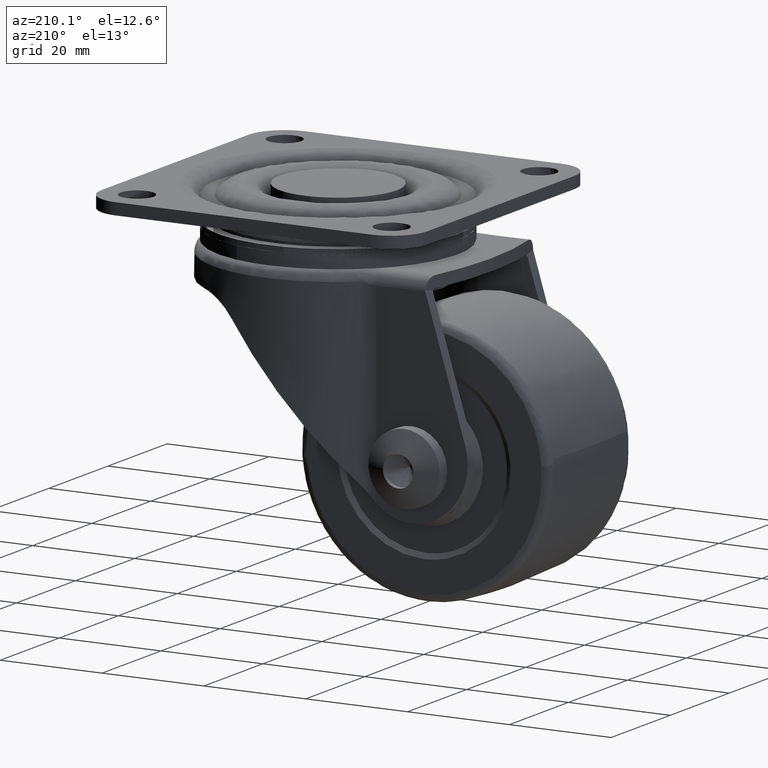
[diagram: clean part render]
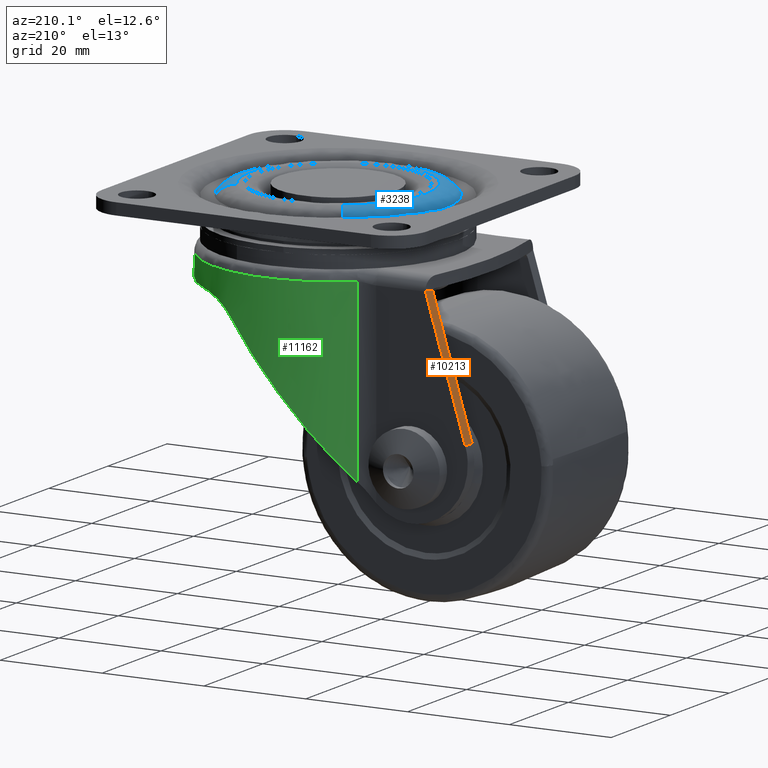
[diagram: same view with three faces highlighted in distinct colors, each labeled with its STEP entity id]
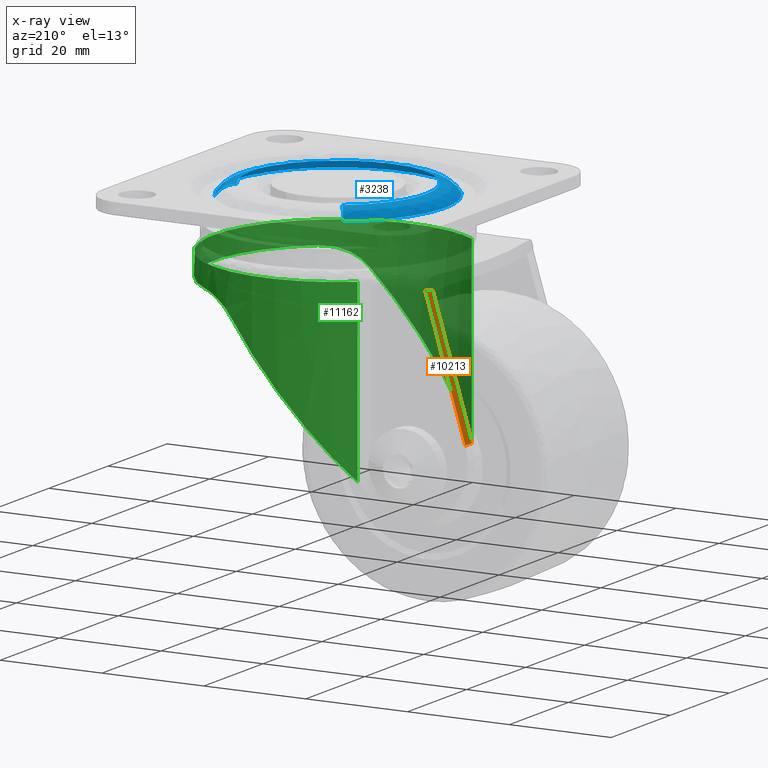
[diagram: x-ray of the same camera — body ghosted, the three highlighted faces saturated]
A machine part, auxiliary view with three faces highlighted in distinct colors.
The next image is the same camera in x-ray (body ghosted, the three faces saturated) — at least one of them is partly hidden behind the body in this view.
Their STEP definitions:

[orange] entity #10213 — the highlighted face is a freeform B-spline surface patch.
#9016=CARTESIAN_POINT('',(-27.753012087365299,18.300003000000000,-12.299999999999860));
#9017=VERTEX_POINT('',#9016);
#9023=CARTESIAN_POINT('',(-27.693171336923051,18.292096441677700,-12.101328718866780));
#9024=VERTEX_POINT('',#9023);
#9025=CARTESIAN_POINT('',(-27.693171336923079,18.292096441677678,-12.101328718866769));
#9026=CARTESIAN_POINT('',(-27.723044311244770,18.300002996684892,-12.200506988455409));
#9027=CARTESIAN_POINT('',(-27.753012087365299,18.300003000000000,-12.299999999999860));
#9035=(BOUNDED_CURVE()B_SPLINE_CURVE(2,(#9025,#9026,#9027),.UNSPECIFIED.,.F.,.U.)CURVE()GEOMETRIC_REPRESENTATION_ITEM()QUASI_UNIFORM_CURVE()RATIONAL_B_SPLINE_CURVE((1.0,0.999209032014707,1.0))REPRESENTATION_ITEM(''));
#9036=EDGE_CURVE('',#9024,#9017,#9035,.T.);
#9087=CARTESIAN_POINT('',(-27.993975955322249,16.0,-13.100000000000000));
#9088=VERTEX_POINT('',#9087);
#9089=CARTESIAN_POINT('',(-27.818652147889949,15.813135094725050,-12.517924989604939));
#9090=VERTEX_POINT('',#9089);
#9091=CARTESIAN_POINT('',(-27.993975955322298,16.0,-13.099999999999991));
#9092=CARTESIAN_POINT('',(-27.897279460978105,16.000000000000007,-12.778967655477768));
#9093=CARTESIAN_POINT('',(-27.818652147889971,15.813135094725050,-12.517924989604881));
#9101=(BOUNDED_CURVE()B_SPLINE_CURVE(2,(#9091,#9092,#9093),.UNSPECIFIED.,.F.,.U.)CURVE()GEOMETRIC_REPRESENTATION_ITEM()QUASI_UNIFORM_CURVE()RATIONAL_B_SPLINE_CURVE((1.0,0.952138407671096,1.0))REPRESENTATION_ITEM(''));
#9102=EDGE_CURVE('',#9088,#9090,#9101,.T.);
#9568=CARTESIAN_POINT('',(-27.755911742406500,17.052615768201381,-12.309626854235860));
#9569=VERTEX_POINT('',#9568);
#9570=CARTESIAN_POINT('',(-27.755911742406500,17.052615768201381,-12.309626854235860));
#9571=CARTESIAN_POINT('',(-27.734998273912019,17.465775992693491,-12.240194142446160));
#9572=CARTESIAN_POINT('',(-27.714084805417549,17.878936217185590,-12.170761430656430));
#9573=CARTESIAN_POINT('',(-27.693171336923051,18.292096441677700,-12.101328718866780));
#9574=B_SPLINE_CURVE_WITH_KNOTS('',3,(#9570,#9571,#9572,#9573),.UNSPECIFIED.,.F.,.U.,(4,4),(0.819219477568994,0.998854123476895),.UNSPECIFIED.);
#9575=EDGE_CURVE('',#9569,#9024,#9574,.T.);
#9577=CARTESIAN_POINT('',(-27.818652147889949,15.813135094725039,-12.517924989604950));
#9578=CARTESIAN_POINT('',(-27.815499219899369,15.875423396483360,-12.507457269220749));
#9579=CARTESIAN_POINT('',(-27.812346291908788,15.937711698241680,-12.496989548836559));
#9580=CARTESIAN_POINT('',(-27.809193363918201,16.0,-12.486521828452361));
#9581=CARTESIAN_POINT('',(-27.791432823414290,16.350871922733798,-12.427556837046870));
#9582=CARTESIAN_POINT('',(-27.773672282910390,16.701743845467590,-12.368591845641371));
#9583=CARTESIAN_POINT('',(-27.755911742406500,17.052615768201381,-12.309626854235860));
#9584=B_SPLINE_CURVE_WITH_KNOTS('',3,(#9577,#9578,#9579,#9580,#9581,#9582,#9583),.UNSPECIFIED.,.F.,.U.,(4,3,4),(0.639584831661094,0.666666666666667,0.819219477568994),.UNSPECIFIED.);
#9585=EDGE_CURVE('',#9090,#9569,#9584,.T.);
#10183=CARTESIAN_POINT('',(-35.962674591449939,15.688916094366469,-39.556078095667942));
#10184=CARTESIAN_POINT('',(-27.299760322966630,15.688916094366469,-10.795204220477430));
#10185=CARTESIAN_POINT('',(-35.962674591449939,18.424222111530241,-39.556078095667942));
#10186=CARTESIAN_POINT('',(-27.299760322966630,18.424222111530241,-10.795204220477430));
#10187=B_SPLINE_SURFACE_WITH_KNOTS('',1,1,((#10183,#10185),(#10184,#10186)),.UNSPECIFIED.,.F.,.F.,.U.,(2,2),(2,2),(0.0,30.037209419113950),(0.0,2.735306017163765),.UNSPECIFIED.);
#10188=ORIENTED_EDGE('',*,*,#9585,.T.);
#10189=ORIENTED_EDGE('',*,*,#9575,.T.);
#10190=ORIENTED_EDGE('',*,*,#9036,.T.);
#10191=CARTESIAN_POINT('',(-35.569263999999997,18.300003000000000,-38.249955000000213));
#10192=VERTEX_POINT('',#10191);
#10193=CARTESIAN_POINT('',(-27.753012087365299,18.300003000000000,-12.299999999999860));
#10194=CARTESIAN_POINT('',(-35.569263999999997,18.300003000000000,-38.249955000000213));
#10195=QUASI_UNIFORM_CURVE('',1,(#10193,#10194),.UNSPECIFIED.,.F.,.U.);
#10196=EDGE_CURVE('',#9017,#10192,#10195,.T.);
#10197=ORIENTED_EDGE('',*,*,#10196,.T.);
#10198=CARTESIAN_POINT('',(-35.569263999999997,16.0,-38.249955000000213));
#10199=VERTEX_POINT('',#10198);
#10200=CARTESIAN_POINT('',(-35.569263999999997,16.0,-38.249955000000213));
#10201=CARTESIAN_POINT('',(-35.569263999999997,18.300003000000000,-38.249955000000213));
#10202=QUASI_UNIFORM_CURVE('',1,(#10200,#10201),.UNSPECIFIED.,.F.,.U.);
#10203=EDGE_CURVE('',#10199,#10192,#10202,.T.);
#10204=ORIENTED_EDGE('',*,*,#10203,.F.);
#10205=CARTESIAN_POINT('',(-27.993975955322249,16.0,-13.100000000000000));
#10206=CARTESIAN_POINT('',(-35.569263999999997,16.0,-38.249955000000213));
#10207=QUASI_UNIFORM_CURVE('',1,(#10205,#10206),.UNSPECIFIED.,.F.,.U.);
#10208=EDGE_CURVE('',#9088,#10199,#10207,.T.);
#10209=ORIENTED_EDGE('',*,*,#10208,.F.);
#10210=ORIENTED_EDGE('',*,*,#9102,.T.);
#10211=EDGE_LOOP('',(#10188,#10189,#10190,#10197,#10204,#10209,#10210));
#10212=FACE_OUTER_BOUND('',#10211,.T.);
#10213=ADVANCED_FACE('',(#10212),#10187,.T.);

[blue] entity #3238 — the highlighted face is a freeform B-spline surface patch.
#3083=CARTESIAN_POINT('',(-11.312930725105405,17.826326380058440,-2.178075283025110));
#3084=CARTESIAN_POINT('',(-29.139257105163839,6.513395654953039,-2.178075283025109));
#3085=CARTESIAN_POINT('',(-17.826326380058440,-11.312930725105405,-2.178075283025110));
#3086=CARTESIAN_POINT('',(-6.513395654953042,-29.139257105163839,-2.178075283025109));
#3087=CARTESIAN_POINT('',(11.312930725105405,-17.826326380058450,-2.178075283025110));
#3088=CARTESIAN_POINT('',(29.139257105163839,-6.513395654953057,-2.178075283025109));
#3089=CARTESIAN_POINT('',(17.826326380058440,11.312930725105405,-2.178075283025110));
#3090=CARTESIAN_POINT('',(-10.571049670058423,16.657308895216879,0.120462374696247));
#3091=CARTESIAN_POINT('',(-27.228358565275300,6.086259225158456,0.120462374696246));
#3092=CARTESIAN_POINT('',(-16.657308895216879,-10.571049670058423,0.120462374696247));
#3093=CARTESIAN_POINT('',(-6.086259225158459,-27.228358565275300,0.120462374696246));
#3094=CARTESIAN_POINT('',(10.571049670058422,-16.657308895216879,0.120462374696247));
#3095=CARTESIAN_POINT('',(27.228358565275300,-6.086259225158473,0.120462374696246));
#3096=CARTESIAN_POINT('',(16.657308895216879,10.571049670058429,0.120462374696247));
#3097=CARTESIAN_POINT('',(-9.134819414813691,14.394172144092762,-0.004914829360740));
#3098=CARTESIAN_POINT('',(-23.528991558906451,5.259352729279072,-0.004914829360740));
#3099=CARTESIAN_POINT('',(-14.394172144092762,-9.134819414813691,-0.004914829360740));
#3100=CARTESIAN_POINT('',(-5.259352729279073,-23.528991558906451,-0.004914829360740));
#3101=CARTESIAN_POINT('',(9.134819414813689,-14.394172144092773,-0.004914829360740));
#3102=CARTESIAN_POINT('',(23.528991558906451,-5.259352729279085,-0.004914829360740));
#3103=CARTESIAN_POINT('',(14.394172144092762,9.134819414813695,-0.004914829360740));
#3111=(BOUNDED_SURFACE()B_SPLINE_SURFACE(2,2,((#3083,#3090,#3097),(#3084,#3091,#3098),(#3085,#3092,#3099),(#3086,#3093,#3100),(#3087,#3094,#3101),(#3088,#3095,#3102),(#3089,#3096,#3103)),.UNSPECIFIED.,.F.,.F.,.U.)B_SPLINE_SURFACE_WITH_KNOTS((3,2,2,3),(3,3),(0.0,34.981224383970073,69.962448767940145,104.943673151910200),(0.0,4.959281177648053),.UNSPECIFIED.)GEOMETRIC_REPRESENTATION_ITEM()RATIONAL_B_SPLINE_SURFACE(((0.924073849877228,0.794867372663792,0.926838724011758),(0.653418885565348,0.562056109354502,0.655373946815001),(0.924073849877228,0.794867372663792,0.926838724011758),(0.653418885565348,0.562056109354502,0.655373946815001),(0.924073849877228,0.794867372663792,0.926838724011758),(0.653418885565348,0.562056109354502,0.655373946815001),(0.924073849877228,0.794867372663792,0.926838724011758)))REPRESENTATION_ITEM('')SURFACE());
#3112=CARTESIAN_POINT('',(-9.247482410263091,14.571700617829199,-9.702723E-016));
#3113=VERTEX_POINT('',#3112);
#3114=CARTESIAN_POINT('',(-17.258342613225999,0.0,0.0));
#3115=VERTEX_POINT('',#3114);
#3116=CARTESIAN_POINT('',(-9.247482410263091,14.571700617829199,-9.702723E-016));
#3117=CARTESIAN_POINT('',(-17.258342613226006,9.487854140589834,0.0));
#3118=CARTESIAN_POINT('',(-17.258342613225999,0.0,0.0));
#3126=(BOUNDED_CURVE()B_SPLINE_CURVE(2,(#3116,#3117,#3118),.UNSPECIFIED.,.F.,.U.)B_SPLINE_CURVE_WITH_KNOTS((3,3),(0.841683542670672,1.0),.UNSPECIFIED.)CURVE()GEOMETRIC_REPRESENTATION_ITEM()RATIONAL_B_SPLINE_CURVE((0.863956829592729,0.814520732886682,1.0))REPRESENTATION_ITEM(''));
#3127=EDGE_CURVE('',#3113,#3115,#3126,.T.);
#3128=ORIENTED_EDGE('',*,*,#3127,.F.);
#3129=CARTESIAN_POINT('',(-11.252362694544409,17.730886435496611,-1.999999999930695));
#3130=VERTEX_POINT('',#3129);
#3131=CARTESIAN_POINT('',(-11.252362694544408,17.730886435496611,-1.999999999930696));
#3132=CARTESIAN_POINT('',(-10.536334021878305,16.602605786889633,-2.114660E-009));
#3133=CARTESIAN_POINT('',(-9.247482410263093,14.571700617829206,-9.702723E-016));
#3141=(BOUNDED_CURVE()B_SPLINE_CURVE(2,(#3131,#3132,#3133),.UNSPECIFIED.,.F.,.U.)B_SPLINE_CURVE_WITH_KNOTS((3,3),(-1.614008289679049,-0.371524495867433),.UNSPECIFIED.)CURVE()GEOMETRIC_REPRESENTATION_ITEM()RATIONAL_B_SPLINE_CURVE((0.912877125468971,0.806189653406946,0.915390887194617))REPRESENTATION_ITEM(''));
#3142=EDGE_CURVE('',#3130,#3113,#3141,.T.);
#3143=ORIENTED_EDGE('',*,*,#3142,.F.);
#3144=CARTESIAN_POINT('',(-21.0,0.0,-2.000000000000095));
#3145=VERTEX_POINT('',#3144);
#3146=CARTESIAN_POINT('',(-21.0,0.0,-2.000000000000095));
#3147=CARTESIAN_POINT('',(-21.000000000000004,11.544847696032244,-2.000000000000096));
#3148=CARTESIAN_POINT('',(-11.252362694544408,17.730886435496604,-1.999999999930695));
#3156=(BOUNDED_CURVE()B_SPLINE_CURVE(2,(#3146,#3147,#3148),.UNSPECIFIED.,.F.,.U.)B_SPLINE_CURVE_WITH_KNOTS((3,3),(0.0,0.158316457331432),.UNSPECIFIED.)CURVE()GEOMETRIC_REPRESENTATION_ITEM()RATIONAL_B_SPLINE_CURVE((1.0,0.814520732884217,0.863956829594043))REPRESENTATION_ITEM(''));
#3157=EDGE_CURVE('',#3145,#3130,#3156,.T.);
#3158=ORIENTED_EDGE('',*,*,#3157,.F.);
#3159=CARTESIAN_POINT('',(21.0,0.0,-2.000000000000095));
#3160=VERTEX_POINT('',#3159);
#3161=CARTESIAN_POINT('',(21.0,0.0,-2.000000000000095));
#3162=CARTESIAN_POINT('',(21.000000000000007,-21.000000000000007,-2.000000000000095));
#3163=CARTESIAN_POINT('',(0.0,-21.0,-2.000000000000095));
#3164=CARTESIAN_POINT('',(-21.000000000000007,-21.000000000000007,-2.000000000000095));
#3165=CARTESIAN_POINT('',(-21.0,0.0,-2.000000000000095));
#3173=(BOUNDED_CURVE()B_SPLINE_CURVE(2,(#3161,#3162,#3163,#3164,#3165),.UNSPECIFIED.,.F.,.U.)B_SPLINE_CURVE_WITH_KNOTS((3,2,3),(0.500000000000000,0.750000000000000,1.0),.UNSPECIFIED.)CURVE()GEOMETRIC_REPRESENTATION_ITEM()RATIONAL_B_SPLINE_CURVE((1.0,0.707106781186547,1.0,0.707106781186547,1.0))REPRESENTATION_ITEM(''));
#3174=EDGE_CURVE('',#3160,#3145,#3173,.T.);
#3175=ORIENTED_EDGE('',*,*,#3174,.F.);
#3176=CARTESIAN_POINT('',(17.730886435529129,11.252362694557000,-1.999999999981894));
#3177=VERTEX_POINT('',#3176);
#3178=CARTESIAN_POINT('',(17.730886435529133,11.252362694557004,-1.999999999981894));
#3179=CARTESIAN_POINT('',(21.000000000000004,6.101063991376143,-2.000000000000095));
#3180=CARTESIAN_POINT('',(21.0,0.0,-2.000000000000095));
#3188=(BOUNDED_CURVE()B_SPLINE_CURVE(2,(#3178,#3179,#3180),.UNSPECIFIED.,.F.,.U.)B_SPLINE_CURVE_WITH_KNOTS((3,3),(0.408316457331531,0.500000000000000),.UNSPECIFIED.)CURVE()GEOMETRIC_REPRESENTATION_ITEM()RATIONAL_B_SPLINE_CURVE((0.863956829594105,0.892586048302446,1.0))REPRESENTATION_ITEM(''));
#3189=EDGE_CURVE('',#3177,#3160,#3188,.T.);
#3190=ORIENTED_EDGE('',*,*,#3189,.F.);
#3191=CARTESIAN_POINT('',(14.571700617829199,9.247482410263093,-1.030914E-015));
#3192=VERTEX_POINT('',#3191);
#3193=CARTESIAN_POINT('',(17.730886435529129,11.252362694557009,-1.999999999981894));
#3194=CARTESIAN_POINT('',(16.602605786956481,10.536334021920727,-2.114660E-009));
#3195=CARTESIAN_POINT('',(14.571700617829206,9.247482410263093,-1.030914E-015));
#3203=(BOUNDED_CURVE()B_SPLINE_CURVE(2,(#3193,#3194,#3195),.UNSPECIFIED.,.F.,.U.)B_SPLINE_CURVE_WITH_KNOTS((3,3),(-1.614008289715065,-0.371524495867433),.UNSPECIFIED.)CURVE()GEOMETRIC_REPRESENTATION_ITEM()RATIONAL_B_SPLINE_CURVE((0.912877125475156,0.806189653403781,0.915390887194617))REPRESENTATION_ITEM(''));
#3204=EDGE_CURVE('',#3177,#3192,#3203,.T.);
#3205=ORIENTED_EDGE('',*,*,#3204,.T.);
#3206=CARTESIAN_POINT('',(17.258342613225999,0.0,0.0));
#3207=VERTEX_POINT('',#3206);
#3208=CARTESIAN_POINT('',(17.258342613225999,0.0,0.0));
#3209=CARTESIAN_POINT('',(17.258342613225995,5.014012031962777,0.0));
#3210=CARTESIAN_POINT('',(14.571700617829199,9.247482410263093,-1.030914E-015));
#3218=(BOUNDED_CURVE()B_SPLINE_CURVE(2,(#3208,#3209,#3210),.UNSPECIFIED.,.F.,.U.)B_SPLINE_CURVE_WITH_KNOTS((3,3),(0.500000000000000,0.591683542670671),.UNSPECIFIED.)CURVE()GEOMETRIC_REPRESENTATION_ITEM()RATIONAL_B_SPLINE_CURVE((1.0,0.892586048299867,0.863956829592730))REPRESENTATION_ITEM(''));
#3219=EDGE_CURVE('',#3207,#3192,#3218,.T.);
#3220=ORIENTED_EDGE('',*,*,#3219,.F.);
#3221=CARTESIAN_POINT('',(-17.258342613225999,0.0,0.0));
#3222=CARTESIAN_POINT('',(-17.258342613226006,-17.258342613226006,0.0));
#3223=CARTESIAN_POINT('',(0.0,-17.258342613225999,0.0));
#3224=CARTESIAN_POINT('',(17.258342613226006,-17.258342613226006,0.0));
#3225=CARTESIAN_POINT('',(17.258342613225999,0.0,0.0));
#3233=(BOUNDED_CURVE()B_SPLINE_CURVE(2,(#3221,#3222,#3223,#3224,#3225),.UNSPECIFIED.,.F.,.U.)B_SPLINE_CURVE_WITH_KNOTS((3,2,3),(0.0,0.250000000000000,0.500000000000000),.UNSPECIFIED.)CURVE()GEOMETRIC_REPRESENTATION_ITEM()RATIONAL_B_SPLINE_CURVE((1.0,0.707106781186547,1.0,0.707106781186547,1.0))REPRESENTATION_ITEM(''));
#3234=EDGE_CURVE('',#3115,#3207,#3233,.T.);
#3235=ORIENTED_EDGE('',*,*,#3234,.F.);
#3236=EDGE_LOOP('',(#3128,#3143,#3158,#3175,#3190,#3205,#3220,#3235));
#3237=FACE_OUTER_BOUND('',#3236,.T.);
#3238=ADVANCED_FACE('',(#3237),#3111,.T.);

[green] entity #11162 — the highlighted face is a freeform B-spline surface patch.
#8483=CARTESIAN_POINT('',(-15.026463530897150,-19.350849949152551,-11.800000000000001));
#8484=VERTEX_POINT('',#8483);
#8565=CARTESIAN_POINT('',(-15.026463530897150,19.350849949152551,-11.800000000000001));
#8566=VERTEX_POINT('',#8565);
#8582=CARTESIAN_POINT('',(-15.026463530897169,19.350849949152551,-11.800000000000001));
#8583=CARTESIAN_POINT('',(2.773854859873751,33.173283374046697,-11.799999999999999));
#8584=CARTESIAN_POINT('',(18.031453561659941,16.586641687023359,-11.800000000000001));
#8585=CARTESIAN_POINT('',(33.289052263446131,2.428613E-014,-11.799999999999999));
#8586=CARTESIAN_POINT('',(18.031453561659969,-16.586641687023331,-11.800000000000001));
#8587=CARTESIAN_POINT('',(2.773854859873781,-33.173283374046711,-11.799999999999999));
#8588=CARTESIAN_POINT('',(-15.026463530897161,-19.350849949152561,-11.800000000000001));
#8596=(BOUNDED_CURVE()B_SPLINE_CURVE(2,(#8582,#8583,#8584,#8585,#8586,#8587,#8588),.UNSPECIFIED.,.F.,.U.)B_SPLINE_CURVE_WITH_KNOTS((3,2,2,3),(0.0,0.333333333333333,0.666666666666667,1.0),.UNSPECIFIED.)CURVE()GEOMETRIC_REPRESENTATION_ITEM()RATIONAL_B_SPLINE_CURVE((1.0,0.735977696394284,1.0,0.735977696394284,1.0,0.735977696394284,1.0))REPRESENTATION_ITEM(''));
#8597=EDGE_CURVE('',#8566,#8484,#8596,.T.);
#9756=CARTESIAN_POINT('',(-15.026463530897150,19.350849949152551,-46.668931058218497));
#9757=VERTEX_POINT('',#9756);
#9758=CARTESIAN_POINT('',(7.458770336177111,23.337025197573151,-19.872117599360699));
#9759=VERTEX_POINT('',#9758);
#9760=CARTESIAN_POINT('',(-15.026463530897161,19.350849949152551,-46.668931058218568));
#9761=CARTESIAN_POINT('',(-4.833677285673796,27.265826872364478,-34.521661732315771));
#9762=CARTESIAN_POINT('',(7.458770336177127,23.337025197573151,-19.872117599360759));
#9770=(BOUNDED_CURVE()B_SPLINE_CURVE(2,(#9760,#9761,#9762),.UNSPECIFIED.,.F.,.U.)CURVE()GEOMETRIC_REPRESENTATION_ITEM()QUASI_UNIFORM_CURVE()RATIONAL_B_SPLINE_CURVE((1.0,0.884765000750035,1.0))REPRESENTATION_ITEM(''));
#9771=EDGE_CURVE('',#9757,#9759,#9770,.T.);
#9830=CARTESIAN_POINT('',(7.458770336177111,-23.337025197573151,-19.872117599360699));
#9831=VERTEX_POINT('',#9830);
#9832=CARTESIAN_POINT('',(-15.026463530897150,-19.350849949152551,-46.668931058218497));
#9833=VERTEX_POINT('',#9832);
#9834=CARTESIAN_POINT('',(7.458770336177150,-23.337025197573141,-19.872117599360731));
#9835=CARTESIAN_POINT('',(-4.833677285673756,-27.265826872364478,-34.521661732315728));
#9836=CARTESIAN_POINT('',(-15.026463530897111,-19.350849949152590,-46.668931058218533));
#9844=(BOUNDED_CURVE()B_SPLINE_CURVE(2,(#9834,#9835,#9836),.UNSPECIFIED.,.F.,.U.)CURVE()GEOMETRIC_REPRESENTATION_ITEM()QUASI_UNIFORM_CURVE()RATIONAL_B_SPLINE_CURVE((1.0,0.884765000750034,1.0))REPRESENTATION_ITEM(''));
#9845=EDGE_CURVE('',#9831,#9833,#9844,.T.);
#9983=CARTESIAN_POINT('',(15.119209000000151,19.278472948195748,-16.300000000000001));
#9984=VERTEX_POINT('',#9983);
#9985=CARTESIAN_POINT('',(15.119209000000151,-19.278472948195748,-16.300000000000001));
#9986=VERTEX_POINT('',#9985);
#9987=CARTESIAN_POINT('',(15.119209000000140,19.278472948195731,-16.300000000000001));
#9988=CARTESIAN_POINT('',(24.499999999999996,11.921555203961640,-16.300000000000001));
#9989=CARTESIAN_POINT('',(24.500000000000000,0.0,-16.300000000000001));
#9990=CARTESIAN_POINT('',(24.499999999999996,-11.921555203961628,-16.300000000000001));
#9991=CARTESIAN_POINT('',(15.119209000000151,-19.278472948195720,-16.300000000000001));
#9999=(BOUNDED_CURVE()B_SPLINE_CURVE(2,(#9987,#9988,#9989,#9990,#9991),.UNSPECIFIED.,.F.,.U.)B_SPLINE_CURVE_WITH_KNOTS((3,2,3),(0.0,0.500000000000000,1.0),.UNSPECIFIED.)CURVE()GEOMETRIC_REPRESENTATION_ITEM()RATIONAL_B_SPLINE_CURVE((1.0,0.899197022745454,1.0,0.899197022745454,1.0))REPRESENTATION_ITEM(''));
#10000=EDGE_CURVE('',#9984,#9986,#9999,.T.);
#10048=CARTESIAN_POINT('',(7.458770336177111,23.337025197573151,-19.872117599360699));
#10049=CARTESIAN_POINT('',(7.632327945935205,23.281555008344860,-19.665279772334141));
#10050=CARTESIAN_POINT('',(7.814394837603298,23.221234671038712,-19.465312524045519));
#10051=CARTESIAN_POINT('',(8.412685911662443,23.014411576187200,-18.859586348007230));
#10052=CARTESIAN_POINT('',(8.846261187853891,22.852469883160300,-18.492128033143128));
#10053=CARTESIAN_POINT('',(9.528521401856336,22.572498955266010,-18.004073706827779));
#10054=CARTESIAN_POINT('',(9.761290893162771,22.472984243416839,-17.851963768534020));
#10055=CARTESIAN_POINT('',(10.117912965054449,22.313556247448190,-17.639388871272310));
#10056=CARTESIAN_POINT('',(10.238032968910540,22.258719771617841,-17.571131341129899));
#10057=CARTESIAN_POINT('',(10.420023300528090,22.173804266576120,-17.472633047473980));
#10058=CARTESIAN_POINT('',(10.481043107927899,22.145028967542839,-17.440421782533129));
#10059=CARTESIAN_POINT('',(10.603124912250429,22.086835778326609,-17.377573555201060));
#10060=CARTESIAN_POINT('',(10.664242135633790,22.057392662451878,-17.346905258233640));
#10061=CARTESIAN_POINT('',(11.214922297389540,21.789261736377380,-17.077556287019490));
#10062=CARTESIAN_POINT('',(11.708783278139011,21.528601778630691,-16.885271476659600));
#10063=CARTESIAN_POINT('',(12.451753596812850,21.101786831061968,-16.658853329057610));
#10064=CARTESIAN_POINT('',(12.699788016045609,20.953539096362679,-16.593764609384611));
#10065=CARTESIAN_POINT('',(13.071956667910101,20.721855683097139,-16.510980266180329));
#10066=CARTESIAN_POINT('',(13.196262960378871,20.642924030725009,-16.485823954516661));
#10067=CARTESIAN_POINT('',(13.443358082797671,20.482865817932570,-16.440623911093390));
#10068=CARTESIAN_POINT('',(13.566196626376261,20.401715414243078,-16.420557848094091));
#10069=CARTESIAN_POINT('',(14.176819326293421,19.990365623917249,-16.332276127506571));
#10070=CARTESIAN_POINT('',(14.653898793975390,19.643394084513218,-16.300000022235700));
#10071=CARTESIAN_POINT('',(15.119209000000151,19.278472948195748,-16.300000000000001));
#10072=B_SPLINE_CURVE_WITH_KNOTS('',3,(#10048,#10049,#10050,#10051,#10052,#10053,#10054,#10055,#10056,#10057,#10058,#10059,#10060,#10061,#10062,#10063,#10064,#10065,#10066,#10067,#10068,#10069,#10070,#10071),.UNSPECIFIED.,.F.,.U.,(4,2,2,2,2,2,2,2,2,2,2,4),(0.914591669483798,0.921875000000001,0.937500000000001,0.945312500000001,0.949218750000001,0.951171875000001,0.953125000000001,0.968750000000001,0.976562500000001,0.980468750000001,0.984375000000000,1.0),.UNSPECIFIED.);
#10073=EDGE_CURVE('',#9759,#9984,#10072,.T.);
#10124=CARTESIAN_POINT('',(15.119209000000151,-19.278472948195748,-16.300000000000001));
#10125=CARTESIAN_POINT('',(14.649286160983561,-19.647011766193970,-16.300002547194460));
#10126=CARTESIAN_POINT('',(14.170816237103150,-19.994525345643950,-16.332982812883831));
#10127=CARTESIAN_POINT('',(13.199152266400869,-20.648860243682350,-16.473803853247279));
#10128=CARTESIAN_POINT('',(12.705941580399180,-20.955679178866149,-16.581557522825818));
#10129=CARTESIAN_POINT('',(12.144342352788721,-21.278393791134022,-16.752538599253029));
#10130=CARTESIAN_POINT('',(12.081849340601710,-21.313938723277769,-16.772231873915320));
#10131=CARTESIAN_POINT('',(11.956683484023801,-21.384405014600709,-16.813044143751728));
#10132=CARTESIAN_POINT('',(11.893940810501180,-21.419364329359912,-16.834188523085551));
#10133=CARTESIAN_POINT('',(11.706307456521950,-21.522840218660502,-16.899512134340949));
#10134=CARTESIAN_POINT('',(11.581828190742220,-21.590061376744998,-16.945634765637241));
#10135=CARTESIAN_POINT('',(11.210342353027910,-21.786614296464940,-17.091795346718008));
#10136=CARTESIAN_POINT('',(10.965284415815130,-21.910838515262618,-17.199617484401792));
#10137=CARTESIAN_POINT('',(10.238997097203599,-22.264380912487649,-17.555092408429768));
#10138=CARTESIAN_POINT('',(9.766566180809368,-22.474605358643561,-17.834564918683672));
#10139=CARTESIAN_POINT('',(9.195378098028757,-22.709245838191372,-18.242269965525679));
#10140=CARTESIAN_POINT('',(9.082114901010788,-22.754763993022831,-18.326744039899950));
#10141=CARTESIAN_POINT('',(8.857685603913803,-22.843061614961520,-18.501756597057891));
#10142=CARTESIAN_POINT('',(8.746201673826565,-22.885958693068631,-18.592574821400000));
#10143=CARTESIAN_POINT('',(8.418189030144376,-23.009522769397488,-18.871826871056669));
#10144=CARTESIAN_POINT('',(8.207836138802589,-23.085200022662271,-19.067134268302549));
#10145=CARTESIAN_POINT('',(7.816000808991715,-23.220677114335800,-19.463698046888400));
#10146=CARTESIAN_POINT('',(7.633508836693653,-23.281176462263570,-19.663878155885289));
#10147=CARTESIAN_POINT('',(7.458770336177111,-23.337025197573151,-19.872117599360699));
#10148=B_SPLINE_CURVE_WITH_KNOTS('',3,(#10124,#10125,#10126,#10127,#10128,#10129,#10130,#10131,#10132,#10133,#10134,#10135,#10136,#10137,#10138,#10139,#10140,#10141,#10142,#10143,#10144,#10145,#10146,#10147),.UNSPECIFIED.,.F.,.U.,(4,2,2,2,2,2,2,2,2,2,2,4),(5.296362E-009,0.015624999999999,0.031249999999999,0.033203124999999,0.035156249999999,0.039062499999998,0.046874999999998,0.062499999999998,0.066406249999998,0.070312499999998,0.078124999999998,0.085475041394616),.UNSPECIFIED.);
#10149=EDGE_CURVE('',#9986,#9831,#10148,.T.);
#10819=CARTESIAN_POINT('',(-15.026463530897150,19.350849949152551,-46.668931058218497));
#10820=CARTESIAN_POINT('',(-15.026463530897150,19.350849949152551,-11.800000000000001));
#10821=QUASI_UNIFORM_CURVE('',1,(#10819,#10820),.UNSPECIFIED.,.F.,.U.);
#10822=EDGE_CURVE('',#9757,#8566,#10821,.T.);
#11048=CARTESIAN_POINT('',(-15.026463530897150,-19.350849949152551,-46.668931058218497));
#11049=CARTESIAN_POINT('',(-15.026463530897150,-19.350849949152551,-11.800000000000001));
#11050=QUASI_UNIFORM_CURVE('',1,(#11048,#11049),.UNSPECIFIED.,.F.,.U.);
#11051=EDGE_CURVE('',#9833,#8484,#11050,.T.);
#11130=CARTESIAN_POINT('',(-15.527860535971820,18.950871937074780,-47.540654334673960));
#11131=CARTESIAN_POINT('',(-15.527860535971820,18.950871937074780,-10.906483641633150));
#11132=CARTESIAN_POINT('',(2.351365014481068,33.600652789399533,-47.540654334673960));
#11133=CARTESIAN_POINT('',(2.351365014481068,33.600652789399533,-10.906483641633145));
#11134=CARTESIAN_POINT('',(18.015945266925979,16.603485060044701,-47.540654334673960));
#11135=CARTESIAN_POINT('',(18.015945266925979,16.603485060044701,-10.906483641633150));
#11136=CARTESIAN_POINT('',(33.680525519370882,-0.393682669310140,-47.540654334673960));
#11137=CARTESIAN_POINT('',(33.680525519370882,-0.393682669310140,-10.906483641633145));
#11138=CARTESIAN_POINT('',(17.622928646383659,-17.020058340806901,-47.540654334673960));
#11139=CARTESIAN_POINT('',(17.622928646383659,-17.020058340806901,-10.906483641633150));
#11140=CARTESIAN_POINT('',(1.565331773396426,-33.646434012303644,-47.540654334673960));
#11141=CARTESIAN_POINT('',(1.565331773396426,-33.646434012303644,-10.906483641633145));
#11142=CARTESIAN_POINT('',(-15.966580924834959,-18.582741820589781,-47.540654334673960));
#11143=CARTESIAN_POINT('',(-15.966580924834959,-18.582741820589781,-10.906483641633150));
#11151=(BOUNDED_SURFACE()B_SPLINE_SURFACE(1,2,((#11130,#11132,#11134,#11136,#11138,#11140,#11142),(#11131,#11133,#11135,#11137,#11139,#11141,#11143)),.UNSPECIFIED.,.F.,.F.,.U.)B_SPLINE_SURFACE_WITH_KNOTS((2,2),(3,2,2,3),(0.0,36.634170693040822),(0.0,38.932908834878660,77.865817669757320,116.798726504635990),.UNSPECIFIED.)GEOMETRIC_REPRESENTATION_ITEM()RATIONAL_B_SPLINE_SURFACE(((1.0,0.727373641573049,1.0,0.727373641573049,1.0,0.727373641573049,1.0),(1.0,0.727373641573049,1.0,0.727373641573049,1.0,0.727373641573049,1.0)))REPRESENTATION_ITEM('')SURFACE());
#11152=ORIENTED_EDGE('',*,*,#10822,.T.);
#11153=ORIENTED_EDGE('',*,*,#8597,.T.);
#11154=ORIENTED_EDGE('',*,*,#11051,.F.);
#11155=ORIENTED_EDGE('',*,*,#9845,.F.);
#11156=ORIENTED_EDGE('',*,*,#10149,.F.);
#11157=ORIENTED_EDGE('',*,*,#10000,.F.);
#11158=ORIENTED_EDGE('',*,*,#10073,.F.);
#11159=ORIENTED_EDGE('',*,*,#9771,.F.);
#11160=EDGE_LOOP('',(#11152,#11153,#11154,#11155,#11156,#11157,#11158,#11159));
#11161=FACE_OUTER_BOUND('',#11160,.T.);
#11162=ADVANCED_FACE('',(#11161),#11151,.T.);